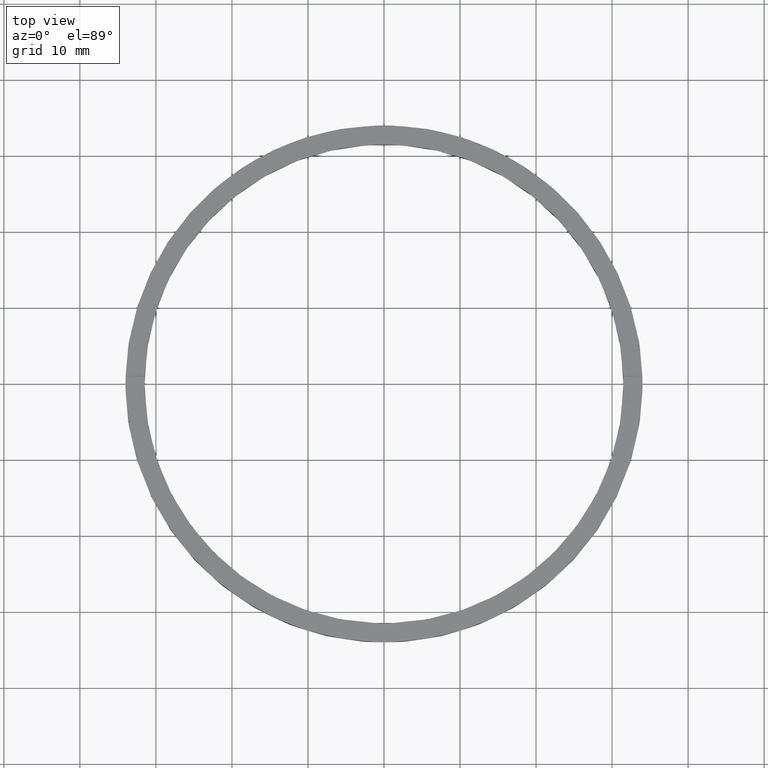
[diagram: clean part render]
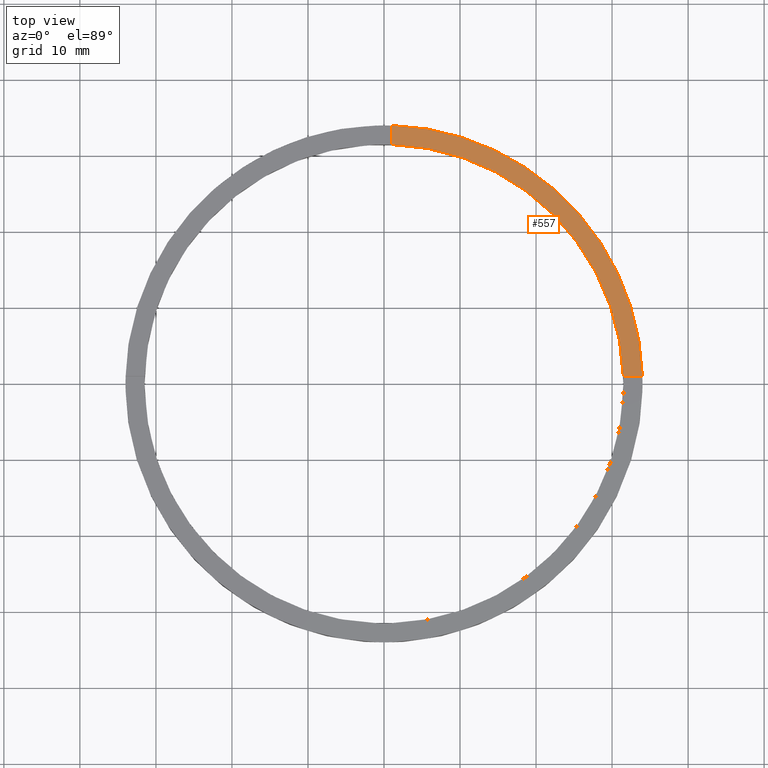
[diagram: same view with one face highlighted and labeled with its STEP entity id]
A machine part, top view. The second image highlights one B-rep face of the part: STEP entity #557.
In plain terms, the highlighted planar face has unit normal (0, 0, 1).
Its self-contained STEP definition (entity closure, byte-faithful):
#8 = CARTESIAN_POINT ( 'NONE',  ( 23.99999999999999289, 0.9999999999998412381, 3.000000000000000000 ) ) ;
#32 = EDGE_CURVE ( 'NONE', #594, #302, #744, .T. ) ;
#58 = VERTEX_POINT ( 'NONE', #655 ) ;
#86 = LINE ( 'NONE', #286, #634 ) ;
#109 = FACE_OUTER_BOUND ( 'NONE', #662, .T. ) ;
#141 = DIRECTION ( 'NONE',  ( -1.000000000000000000, -6.505213034913025371E-17, -0.000000000000000000 ) ) ;
#154 = EDGE_CURVE ( 'NONE', #594, #422, #230, .T. ) ;
#195 = PLANE ( 'NONE',  #454 ) ;
#216 = DIRECTION ( 'NONE',  ( 1.000000000000000000, 0.000000000000000000, 0.000000000000000000 ) ) ;
#230 = LINE ( 'NONE', #8, #497 ) ;
#262 = CARTESIAN_POINT ( 'NONE',  ( 0.000000000000000000, 0.000000000000000000, 3.000000000000000000 ) ) ;
#286 = CARTESIAN_POINT ( 'NONE',  ( 0.9999999999999751310, 24.00000000000000000, 3.000000000000000000 ) ) ;
#302 = VERTEX_POINT ( 'NONE', #488 ) ;
#304 = DIRECTION ( 'NONE',  ( 0.000000000000000000, 0.000000000000000000, 1.000000000000000000 ) ) ;
#310 = DIRECTION ( 'NONE',  ( 0.000000000000000000, 0.000000000000000000, 1.000000000000000000 ) ) ;
#325 = ORIENTED_EDGE ( 'NONE', *, *, #508, .F. ) ;
#344 = AXIS2_PLACEMENT_3D ( 'NONE', #430, #763, #216 ) ;
#400 = CARTESIAN_POINT ( 'NONE',  ( 0.000000000000000000, 0.000000000000000000, 3.000000000000000000 ) ) ;
#422 = VERTEX_POINT ( 'NONE', #767 ) ;
#430 = CARTESIAN_POINT ( 'NONE',  ( 0.000000000000000000, 0.000000000000000000, 3.000000000000000000 ) ) ;
#454 = AXIS2_PLACEMENT_3D ( 'NONE', #400, #310, #723 ) ;
#488 = CARTESIAN_POINT ( 'NONE',  ( 0.9999999999999751310, 33.98529093593285921, 3.000000000000000000 ) ) ;
#497 = VECTOR ( 'NONE', #141, 1000.000000000000000 ) ;
#508 = EDGE_CURVE ( 'NONE', #58, #302, #86, .T. ) ;
#555 = DIRECTION ( 'NONE',  ( 1.000000000000000000, 0.000000000000000000, 0.000000000000000000 ) ) ;
#557 = ADVANCED_FACE ( 'NONE', ( #109 ), #195, .T. ) ;
#567 = ORIENTED_EDGE ( 'NONE', *, *, #32, .T. ) ;
#594 = VERTEX_POINT ( 'NONE', #667 ) ;
#628 = CIRCLE ( 'NONE', #654, 31.50000000000000000 ) ;
#634 = VECTOR ( 'NONE', #678, 1000.000000000000000 ) ;
#649 = ORIENTED_EDGE ( 'NONE', *, *, #705, .F. ) ;
#654 = AXIS2_PLACEMENT_3D ( 'NONE', #262, #304, #555 ) ;
#655 = CARTESIAN_POINT ( 'NONE',  ( 0.9999999999999751310, 31.48412298286233124, 3.000000000000000000 ) ) ;
#662 = EDGE_LOOP ( 'NONE', ( #325, #649, #701, #567 ) ) ;
#667 = CARTESIAN_POINT ( 'NONE',  ( 33.98529093593285921, 0.9999999999998419042, 3.000000000000000000 ) ) ;
#678 = DIRECTION ( 'NONE',  ( 0.000000000000000000, 1.000000000000000000, 0.000000000000000000 ) ) ;
#701 = ORIENTED_EDGE ( 'NONE', *, *, #154, .F. ) ;
#705 = EDGE_CURVE ( 'NONE', #422, #58, #628, .T. ) ;
#723 = DIRECTION ( 'NONE',  ( 1.000000000000000000, 0.000000000000000000, -0.000000000000000000 ) ) ;
#744 = CIRCLE ( 'NONE', #344, 34.00000000000000000 ) ;
#763 = DIRECTION ( 'NONE',  ( 0.000000000000000000, 0.000000000000000000, 1.000000000000000000 ) ) ;
#767 = CARTESIAN_POINT ( 'NONE',  ( 31.48412298286233479, 0.9999999999998416822, 3.000000000000000000 ) ) ;